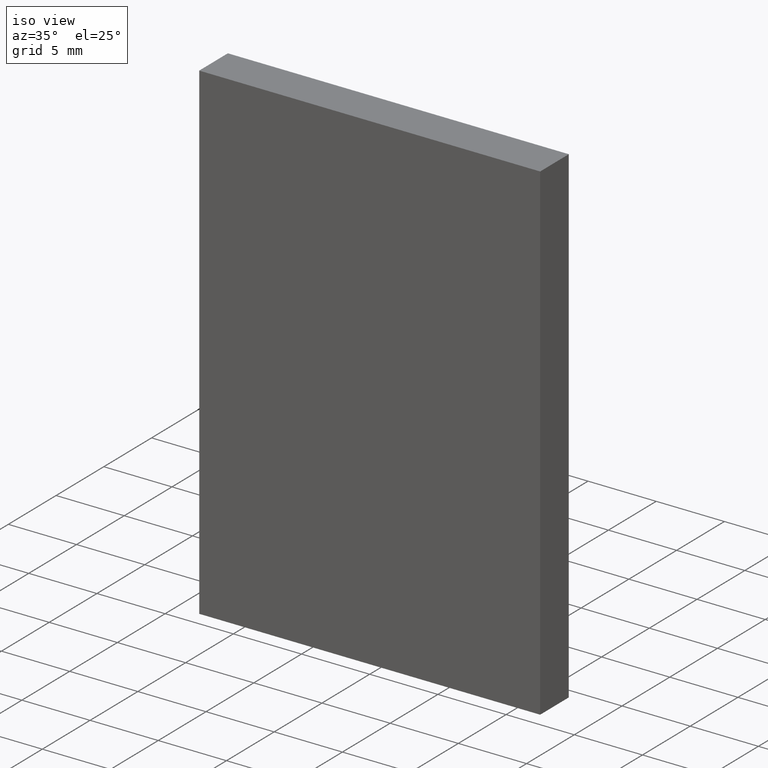
[diagram: clean part render]
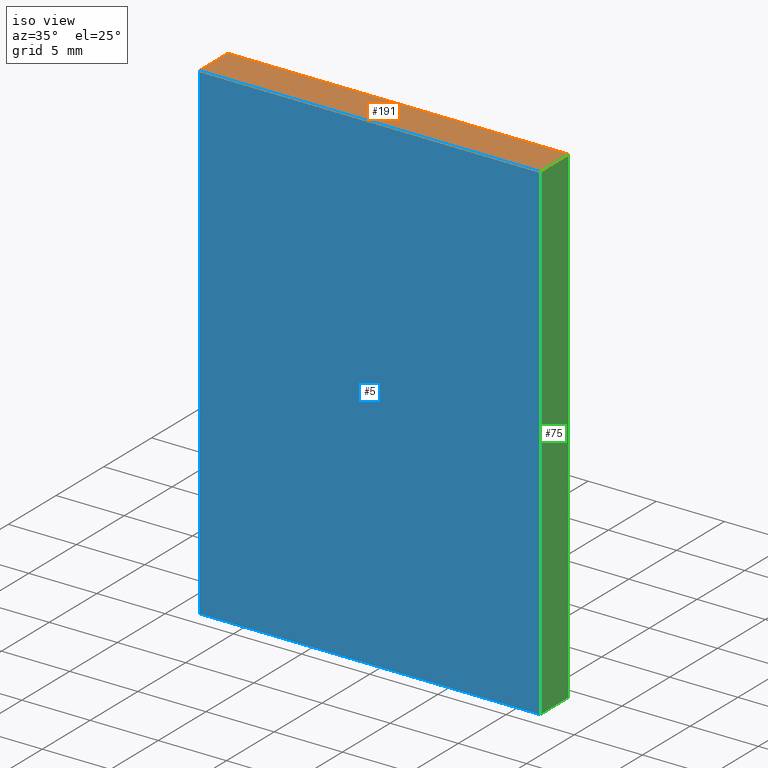
[diagram: same view with three faces highlighted in distinct colors, each labeled with its STEP entity id]
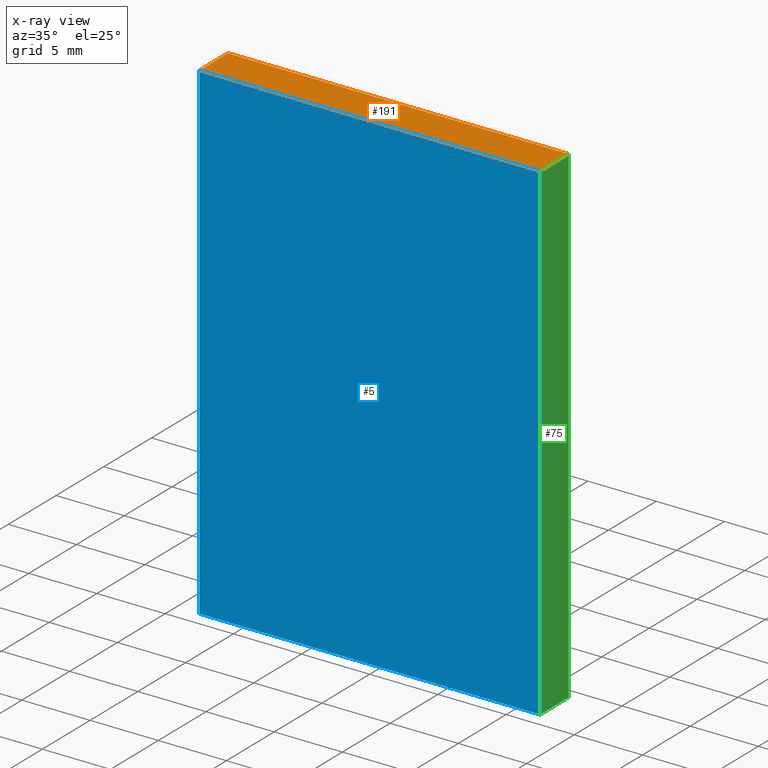
[diagram: x-ray of the same camera — body ghosted, the three highlighted faces saturated]
A machine part, iso view with three faces highlighted in distinct colors.
The next image is the same camera in x-ray (body ghosted, the three faces saturated) — at least one of them is partly hidden behind the body in this view.
Their STEP definitions:

[orange] entity #191 — the highlighted planar face has unit normal (0, 0, -1).
#4 = DIRECTION ( 'NONE',  ( 1.000000000000000000, 0.0000000000000000000, 0.0000000000000000000 ) ) ;
#6 = PLANE ( 'NONE',  #120 ) ;
#24 = EDGE_LOOP ( 'NONE', ( #98, #25, #119, #26 ) ) ;
#25 = ORIENTED_EDGE ( 'NONE', *, *, #174, .F. ) ;
#26 = ORIENTED_EDGE ( 'NONE', *, *, #99, .T. ) ;
#32 = CARTESIAN_POINT ( 'NONE',  ( 12.50000000000000000, 0.0000000000000000000, 18.00000000000000400 ) ) ;
#33 = DIRECTION ( 'NONE',  ( -1.000000000000000000, 0.0000000000000000000, -0.0000000000000000000 ) ) ;
#34 = VERTEX_POINT ( 'NONE', #141 ) ;
#42 = CARTESIAN_POINT ( 'NONE',  ( -12.50000000000000000, 3.000000000000000000, 18.00000000000000400 ) ) ;
#44 = DIRECTION ( 'NONE',  ( 1.000000000000000000, 0.0000000000000000000, 0.0000000000000000000 ) ) ;
#57 = CARTESIAN_POINT ( 'NONE',  ( -12.50000000000000000, 3.000000000000000000, 18.00000000000000400 ) ) ;
#65 = DIRECTION ( 'NONE',  ( -0.0000000000000000000, -1.000000000000000000, -0.0000000000000000000 ) ) ;
#66 = VECTOR ( 'NONE', #65, 1000.000000000000000 ) ;
#72 = EDGE_CURVE ( 'NONE', #137, #34, #185, .T. ) ;
#79 = LINE ( 'NONE', #42, #66 ) ;
#86 = DIRECTION ( 'NONE',  ( -0.0000000000000000000, -1.000000000000000000, -0.0000000000000000000 ) ) ;
#94 = CARTESIAN_POINT ( 'NONE',  ( -12.50000000000000000, 0.0000000000000000000, 18.00000000000000400 ) ) ;
#98 = ORIENTED_EDGE ( 'NONE', *, *, #159, .T. ) ;
#99 = EDGE_CURVE ( 'NONE', #137, #161, #79, .T. ) ;
#102 = VECTOR ( 'NONE', #44, 1000.000000000000000 ) ;
#107 = LINE ( 'NONE', #116, #102 ) ;
#109 = VECTOR ( 'NONE', #4, 1000.000000000000000 ) ;
#115 = CARTESIAN_POINT ( 'NONE',  ( -12.50000000000000000, 3.000000000000000000, 18.00000000000000400 ) ) ;
#116 = CARTESIAN_POINT ( 'NONE',  ( -12.50000000000000000, 0.0000000000000000000, 18.00000000000000400 ) ) ;
#118 = DIRECTION ( 'NONE',  ( 0.0000000000000000000, 0.0000000000000000000, -1.000000000000000000 ) ) ;
#119 = ORIENTED_EDGE ( 'NONE', *, *, #72, .F. ) ;
#120 = AXIS2_PLACEMENT_3D ( 'NONE', #57, #118, #33 ) ;
#126 = VECTOR ( 'NONE', #86, 1000.000000000000000 ) ;
#137 = VERTEX_POINT ( 'NONE', #167 ) ;
#141 = CARTESIAN_POINT ( 'NONE',  ( 12.50000000000000000, 3.000000000000000000, 18.00000000000000400 ) ) ;
#157 = LINE ( 'NONE', #201, #126 ) ;
#159 = EDGE_CURVE ( 'NONE', #161, #165, #107, .T. ) ;
#161 = VERTEX_POINT ( 'NONE', #94 ) ;
#165 = VERTEX_POINT ( 'NONE', #32 ) ;
#167 = CARTESIAN_POINT ( 'NONE',  ( -12.50000000000000000, 3.000000000000000000, 18.00000000000000400 ) ) ;
#174 = EDGE_CURVE ( 'NONE', #34, #165, #157, .T. ) ;
#185 = LINE ( 'NONE', #115, #109 ) ;
#187 = FACE_OUTER_BOUND ( 'NONE', #24, .T. ) ;
#191 = ADVANCED_FACE ( 'NONE', ( #187 ), #6, .F. ) ;
#201 = CARTESIAN_POINT ( 'NONE',  ( 12.50000000000000000, 3.000000000000000000, 18.00000000000000400 ) ) ;

[blue] entity #5 — the highlighted planar face has unit normal (0, 1, 0).
#5 = ADVANCED_FACE ( 'NONE', ( #111 ), #179, .F. ) ;
#12 = DIRECTION ( 'NONE',  ( 0.0000000000000000000, 1.000000000000000000, 0.0000000000000000000 ) ) ;
#13 = ORIENTED_EDGE ( 'NONE', *, *, #159, .F. ) ;
#15 = EDGE_LOOP ( 'NONE', ( #178, #13, #151, #60 ) ) ;
#22 = CARTESIAN_POINT ( 'NONE',  ( 12.49999999999999500, 0.0000000000000000000, -17.99999999999999600 ) ) ;
#32 = CARTESIAN_POINT ( 'NONE',  ( 12.50000000000000000, 0.0000000000000000000, 18.00000000000000400 ) ) ;
#35 = EDGE_CURVE ( 'NONE', #142, #161, #56, .T. ) ;
#38 = DIRECTION ( 'NONE',  ( -1.445602896647339400E-016, -0.0000000000000000000, -1.000000000000000000 ) ) ;
#44 = DIRECTION ( 'NONE',  ( 1.000000000000000000, 0.0000000000000000000, 0.0000000000000000000 ) ) ;
#56 = LINE ( 'NONE', #93, #153 ) ;
#60 = ORIENTED_EDGE ( 'NONE', *, *, #70, .F. ) ;
#70 = EDGE_CURVE ( 'NONE', #83, #142, #200, .T. ) ;
#73 = DIRECTION ( 'NONE',  ( -1.000000000000000000, -0.0000000000000000000, -0.0000000000000000000 ) ) ;
#82 = DIRECTION ( 'NONE',  ( 0.0000000000000000000, -0.0000000000000000000, 1.000000000000000000 ) ) ;
#83 = VERTEX_POINT ( 'NONE', #130 ) ;
#93 = CARTESIAN_POINT ( 'NONE',  ( -12.50000000000000500, 0.0000000000000000000, -17.99999999999999600 ) ) ;
#94 = CARTESIAN_POINT ( 'NONE',  ( -12.50000000000000000, 0.0000000000000000000, 18.00000000000000400 ) ) ;
#100 = AXIS2_PLACEMENT_3D ( 'NONE', #131, #12, #82 ) ;
#102 = VECTOR ( 'NONE', #44, 1000.000000000000000 ) ;
#107 = LINE ( 'NONE', #116, #102 ) ;
#111 = FACE_OUTER_BOUND ( 'NONE', #15, .T. ) ;
#116 = CARTESIAN_POINT ( 'NONE',  ( -12.50000000000000000, 0.0000000000000000000, 18.00000000000000400 ) ) ;
#123 = VECTOR ( 'NONE', #38, 1000.000000000000000 ) ;
#124 = DIRECTION ( 'NONE',  ( 1.445602896647339400E-016, 0.0000000000000000000, 1.000000000000000000 ) ) ;
#125 = CARTESIAN_POINT ( 'NONE',  ( -12.50000000000000500, 0.0000000000000000000, -17.99999999999999600 ) ) ;
#128 = LINE ( 'NONE', #22, #123 ) ;
#130 = CARTESIAN_POINT ( 'NONE',  ( 12.49999999999999500, 0.0000000000000000000, -17.99999999999999600 ) ) ;
#131 = CARTESIAN_POINT ( 'NONE',  ( 0.0000000000000000000, 0.0000000000000000000, 0.0000000000000000000 ) ) ;
#142 = VERTEX_POINT ( 'NONE', #125 ) ;
#145 = EDGE_CURVE ( 'NONE', #165, #83, #128, .T. ) ;
#151 = ORIENTED_EDGE ( 'NONE', *, *, #35, .F. ) ;
#153 = VECTOR ( 'NONE', #124, 1000.000000000000000 ) ;
#159 = EDGE_CURVE ( 'NONE', #161, #165, #107, .T. ) ;
#161 = VERTEX_POINT ( 'NONE', #94 ) ;
#165 = VERTEX_POINT ( 'NONE', #32 ) ;
#166 = VECTOR ( 'NONE', #73, 1000.000000000000000 ) ;
#178 = ORIENTED_EDGE ( 'NONE', *, *, #145, .F. ) ;
#179 = PLANE ( 'NONE',  #100 ) ;
#190 = CARTESIAN_POINT ( 'NONE',  ( -12.50000000000000500, 0.0000000000000000000, -17.99999999999999600 ) ) ;
#200 = LINE ( 'NONE', #190, #166 ) ;

[green] entity #75 — the highlighted planar face has unit normal (-1, 0, 0).
#1 = DIRECTION ( 'NONE',  ( -0.0000000000000000000, -1.000000000000000000, -0.0000000000000000000 ) ) ;
#17 = LINE ( 'NONE', #122, #127 ) ;
#21 = CARTESIAN_POINT ( 'NONE',  ( 12.49999999999999500, 3.000000000000000000, -17.99999999999999600 ) ) ;
#22 = CARTESIAN_POINT ( 'NONE',  ( 12.49999999999999500, 0.0000000000000000000, -17.99999999999999600 ) ) ;
#32 = CARTESIAN_POINT ( 'NONE',  ( 12.50000000000000000, 0.0000000000000000000, 18.00000000000000400 ) ) ;
#34 = VERTEX_POINT ( 'NONE', #141 ) ;
#38 = DIRECTION ( 'NONE',  ( -1.445602896647339400E-016, -0.0000000000000000000, -1.000000000000000000 ) ) ;
#49 = EDGE_CURVE ( 'NONE', #34, #189, #63, .T. ) ;
#54 = DIRECTION ( 'NONE',  ( 1.445602896647339400E-016, 0.0000000000000000000, 1.000000000000000000 ) ) ;
#63 = LINE ( 'NONE', #21, #158 ) ;
#64 = PLANE ( 'NONE',  #148 ) ;
#75 = ADVANCED_FACE ( 'NONE', ( #162 ), #64, .F. ) ;
#80 = DIRECTION ( 'NONE',  ( -1.445602896647339400E-016, -0.0000000000000000000, -1.000000000000000000 ) ) ;
#83 = VERTEX_POINT ( 'NONE', #130 ) ;
#85 = CARTESIAN_POINT ( 'NONE',  ( 12.49999999999999500, 3.000000000000000000, -17.99999999999999600 ) ) ;
#86 = DIRECTION ( 'NONE',  ( -0.0000000000000000000, -1.000000000000000000, -0.0000000000000000000 ) ) ;
#88 = EDGE_CURVE ( 'NONE', #189, #83, #17, .T. ) ;
#103 = CARTESIAN_POINT ( 'NONE',  ( 12.49999999999999500, 3.000000000000000000, -17.99999999999999600 ) ) ;
#104 = ORIENTED_EDGE ( 'NONE', *, *, #145, .T. ) ;
#106 = ORIENTED_EDGE ( 'NONE', *, *, #88, .F. ) ;
#122 = CARTESIAN_POINT ( 'NONE',  ( 12.49999999999999500, 3.000000000000000000, -17.99999999999999600 ) ) ;
#123 = VECTOR ( 'NONE', #38, 1000.000000000000000 ) ;
#126 = VECTOR ( 'NONE', #86, 1000.000000000000000 ) ;
#127 = VECTOR ( 'NONE', #1, 1000.000000000000000 ) ;
#128 = LINE ( 'NONE', #22, #123 ) ;
#130 = CARTESIAN_POINT ( 'NONE',  ( 12.49999999999999500, 0.0000000000000000000, -17.99999999999999600 ) ) ;
#141 = CARTESIAN_POINT ( 'NONE',  ( 12.50000000000000000, 3.000000000000000000, 18.00000000000000400 ) ) ;
#145 = EDGE_CURVE ( 'NONE', #165, #83, #128, .T. ) ;
#148 = AXIS2_PLACEMENT_3D ( 'NONE', #85, #169, #54 ) ;
#157 = LINE ( 'NONE', #201, #126 ) ;
#158 = VECTOR ( 'NONE', #80, 1000.000000000000000 ) ;
#162 = FACE_OUTER_BOUND ( 'NONE', #177, .T. ) ;
#165 = VERTEX_POINT ( 'NONE', #32 ) ;
#169 = DIRECTION ( 'NONE',  ( -1.000000000000000000, 0.0000000000000000000, 1.445602896647339400E-016 ) ) ;
#174 = EDGE_CURVE ( 'NONE', #34, #165, #157, .T. ) ;
#176 = ORIENTED_EDGE ( 'NONE', *, *, #174, .T. ) ;
#177 = EDGE_LOOP ( 'NONE', ( #104, #106, #195, #176 ) ) ;
#189 = VERTEX_POINT ( 'NONE', #103 ) ;
#195 = ORIENTED_EDGE ( 'NONE', *, *, #49, .F. ) ;
#201 = CARTESIAN_POINT ( 'NONE',  ( 12.50000000000000000, 3.000000000000000000, 18.00000000000000400 ) ) ;